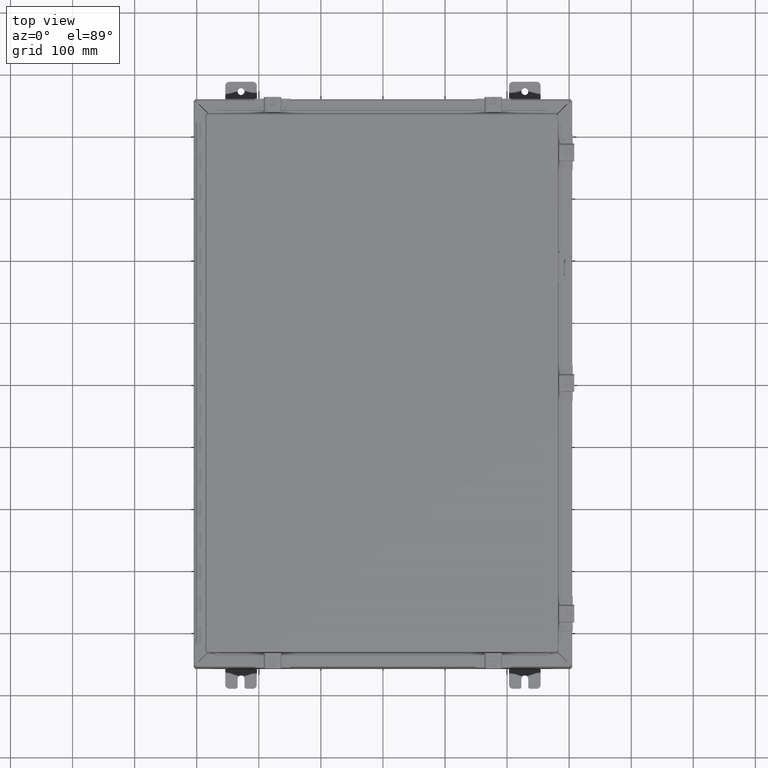
[diagram: clean part render]
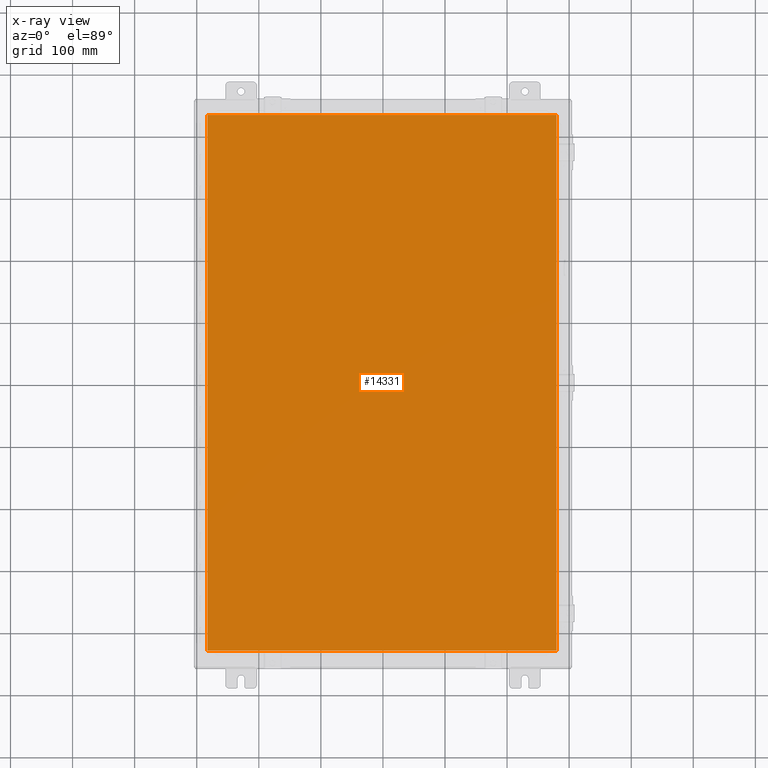
[diagram: x-ray — body ghosted, one internal face saturated and labeled with its STEP entity id]
A machine part, top view, then the same camera in x-ray: the body is ghosted and one INTERNAL B-rep face — a face not visible from any outside direction — is saturated and labeled: STEP entity #14331.
In plain terms, the highlighted planar face has unit normal (0, -0, -1).
Its self-contained STEP definition (entity closure, byte-faithful):
#1450=PLANE('',#15188);
#2059=FACE_OUTER_BOUND('',#2869,.T.);
#2869=EDGE_LOOP('',(#11363,#11364,#11365,#11366));
#3838=LINE('',#23464,#5147);
#3844=LINE('',#23594,#5153);
#3848=LINE('',#23691,#5157);
#3862=LINE('',#23925,#5171);
#5147=VECTOR('',#17284,22.1645);
#5153=VECTOR('',#17294,33.977);
#5157=VECTOR('',#17306,22.1645);
#5171=VECTOR('',#17342,33.977);
#6893=VERTEX_POINT('',#23450);
#6894=VERTEX_POINT('',#23456);
#6900=VERTEX_POINT('',#23593);
#6904=VERTEX_POINT('',#23690);
#8502=EDGE_CURVE('',#6893,#6894,#3838,.T.);
#8516=EDGE_CURVE('',#6900,#6893,#3844,.T.);
#8527=EDGE_CURVE('',#6904,#6900,#3848,.T.);
#8550=EDGE_CURVE('',#6894,#6904,#3862,.T.);
#11363=ORIENTED_EDGE('',*,*,#8516,.T.);
#11364=ORIENTED_EDGE('',*,*,#8502,.T.);
#11365=ORIENTED_EDGE('',*,*,#8550,.T.);
#11366=ORIENTED_EDGE('',*,*,#8527,.T.);
#14331=ADVANCED_FACE('',(#2059),#1450,.T.);
#15188=AXIS2_PLACEMENT_3D('',#23948,#17346,#17347);
#17284=DIRECTION('',(1.,1.25614896687758E-16,0.));
#17294=DIRECTION('',(1.64665058452024E-16,-1.,0.));
#17306=DIRECTION('',(-1.,0.,0.));
#17342=DIRECTION('',(-8.23325292260119E-17,1.,0.));
#17346=DIRECTION('center_axis',(0.,0.,1.));
#17347=DIRECTION('ref_axis',(1.,0.,0.));
#23450=CARTESIAN_POINT('',(-11.08225,-16.9885,0.074));
#23456=CARTESIAN_POINT('',(11.08225,-16.9885,0.074));
#23464=CARTESIAN_POINT('',(5.541125,-16.9885,0.074));
#23593=CARTESIAN_POINT('',(-11.08225,16.9885,0.074));
#23594=CARTESIAN_POINT('',(-11.08225,-8.49425,0.074));
#23690=CARTESIAN_POINT('',(11.08225,16.9885,0.074));
#23691=CARTESIAN_POINT('',(-5.59375,16.9885,0.074));
#23925=CARTESIAN_POINT('',(11.08225,8.49425,0.074));
#23948=CARTESIAN_POINT('Origin',(1.3987061727561E-15,3.91932784420206E-16,
0.074));